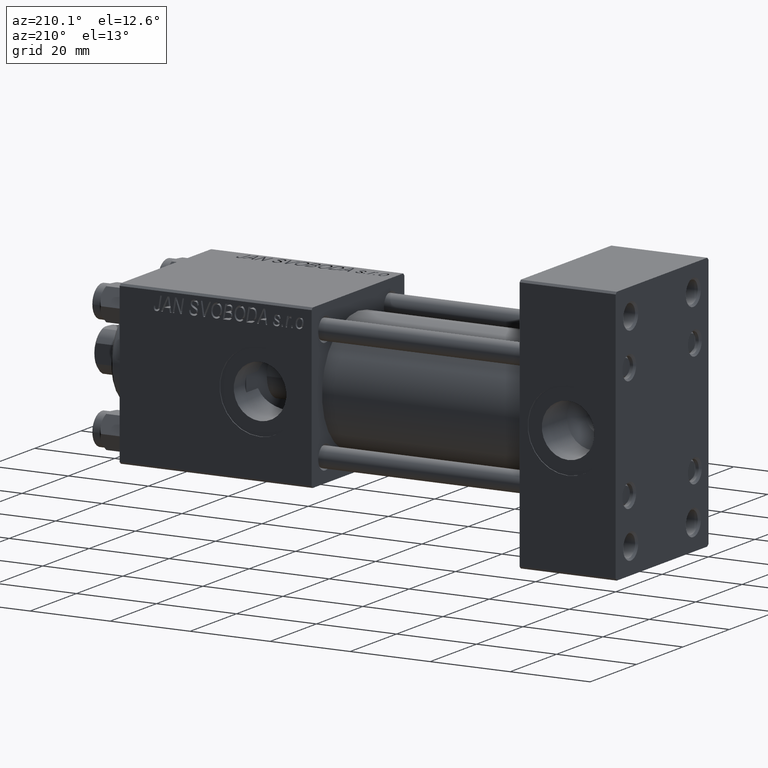
[diagram: clean part render]
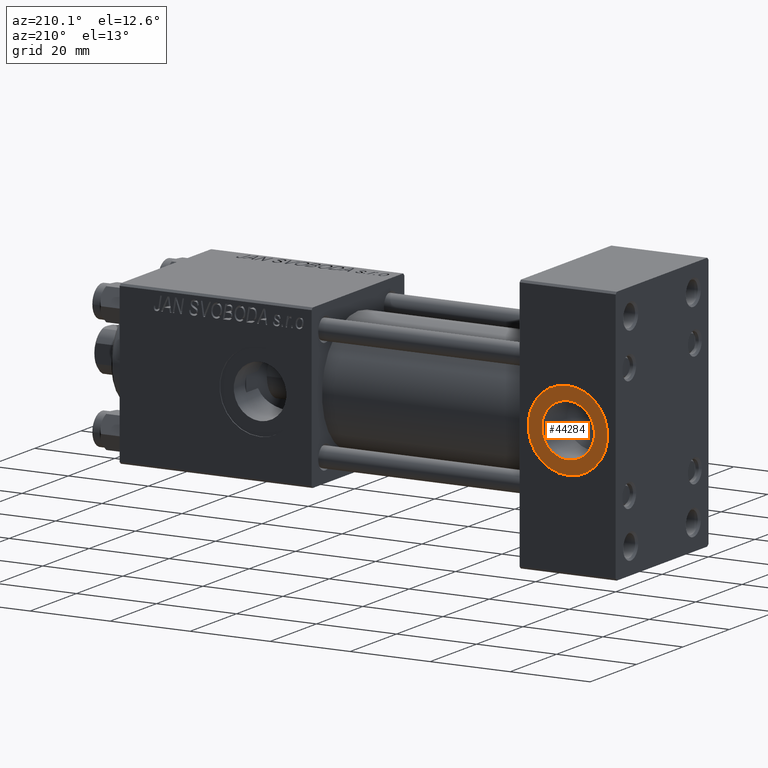
[diagram: same view with one face highlighted and labeled with its STEP entity id]
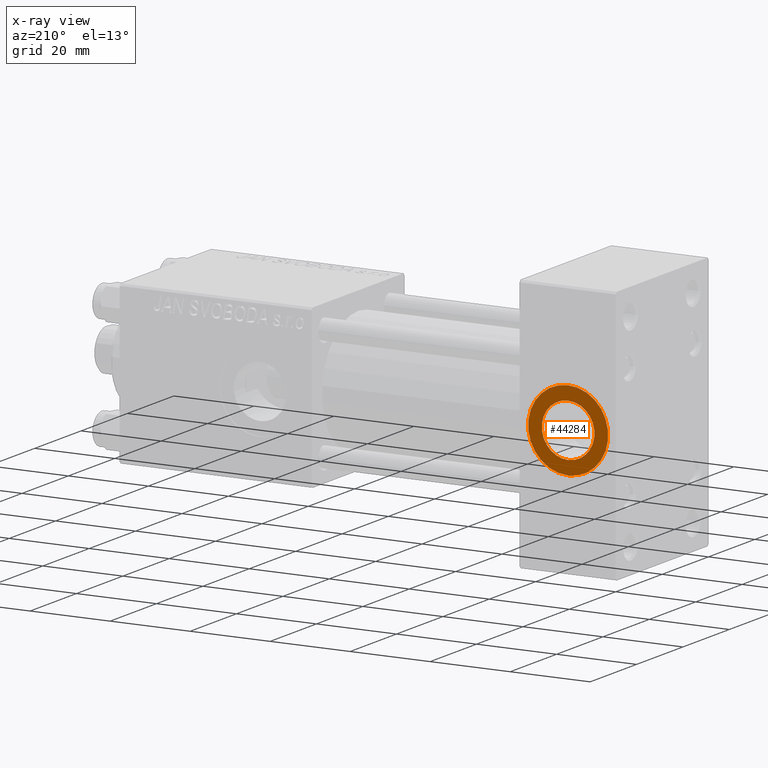
[diagram: x-ray of the same camera — body ghosted, the highlighted face saturated]
A machine part, auxiliary view. The second image highlights one B-rep face of the part: STEP entity #44284.
The next image is the same camera in x-ray: the body ghosted, the highlighted face saturated — about 0% of this face is hidden behind the body in this view.
In plain terms, the highlighted planar face has unit normal (0, 1, 0).
Its self-contained STEP definition (entity closure, byte-faithful):
#785 = AXIS2_PLACEMENT_3D ( 'NONE', #22925, #22418, #37836 ) ;
#985 = FACE_OUTER_BOUND ( 'NONE', #35199, .T. ) ;
#2363 = EDGE_LOOP ( 'NONE', ( #13763, #11213 ) ) ;
#3756 = VERTEX_POINT ( 'NONE', #6558 ) ;
#3809 = DIRECTION ( 'NONE',  ( 0.000000000000000000, 1.000000000000000000, 0.000000000000000000 ) ) ;
#6558 = CARTESIAN_POINT ( 'NONE',  ( 12.00000000000000000, 19.79999999999999716, -6.579999999999998295 ) ) ;
#7762 = DIRECTION ( 'NONE',  ( 0.000000000000000000, 1.000000000000000000, 0.000000000000000000 ) ) ;
#11213 = ORIENTED_EDGE ( 'NONE', *, *, #12389, .F. ) ;
#12389 = EDGE_CURVE ( 'NONE', #3756, #39683, #22550, .T. ) ;
#12856 = FACE_BOUND ( 'NONE', #2363, .T. ) ;
#13763 = ORIENTED_EDGE ( 'NONE', *, *, #40485, .F. ) ;
#17960 = VERTEX_POINT ( 'NONE', #35458 ) ;
#18800 = CIRCLE ( 'NONE', #22836, 10.00000000000000000 ) ;
#19342 = VERTEX_POINT ( 'NONE', #40837 ) ;
#19917 = CIRCLE ( 'NONE', #48963, 6.579999999999998295 ) ;
#22418 = DIRECTION ( 'NONE',  ( 0.000000000000000000, 1.000000000000000000, 0.000000000000000000 ) ) ;
#22550 = CIRCLE ( 'NONE', #785, 6.579999999999998295 ) ;
#22836 = AXIS2_PLACEMENT_3D ( 'NONE', #36309, #24921, #40343 ) ;
#22925 = CARTESIAN_POINT ( 'NONE',  ( 12.00000000000000000, 19.79999999999999716, 0.000000000000000000 ) ) ;
#23709 = DIRECTION ( 'NONE',  ( 0.000000000000000000, 1.000000000000000000, 0.000000000000000000 ) ) ;
#24561 = EDGE_CURVE ( 'NONE', #19342, #17960, #18800, .T. ) ;
#24921 = DIRECTION ( 'NONE',  ( 0.000000000000000000, 1.000000000000000000, 0.000000000000000000 ) ) ;
#26699 = CARTESIAN_POINT ( 'NONE',  ( 12.00000000000000000, 19.79999999999999716, 0.000000000000000000 ) ) ;
#28870 = ORIENTED_EDGE ( 'NONE', *, *, #24561, .T. ) ;
#30253 = DIRECTION ( 'NONE',  ( 0.000000000000000000, 0.000000000000000000, 1.000000000000000000 ) ) ;
#31123 = ORIENTED_EDGE ( 'NONE', *, *, #42660, .T. ) ;
#31800 = CARTESIAN_POINT ( 'NONE',  ( 12.00000000000000000, 19.79999999999999716, 0.000000000000000000 ) ) ;
#32121 = CIRCLE ( 'NONE', #37733, 10.00000000000000000 ) ;
#34593 = AXIS2_PLACEMENT_3D ( 'NONE', #31800, #23709, #39132 ) ;
#35199 = EDGE_LOOP ( 'NONE', ( #31123, #28870 ) ) ;
#35458 = CARTESIAN_POINT ( 'NONE',  ( 12.00000000000000000, 19.79999999999999716, 10.00000000000000000 ) ) ;
#36309 = CARTESIAN_POINT ( 'NONE',  ( 12.00000000000000000, 19.79999999999999716, 0.000000000000000000 ) ) ;
#37733 = AXIS2_PLACEMENT_3D ( 'NONE', #46473, #3809, #42940 ) ;
#37836 = DIRECTION ( 'NONE',  ( 0.000000000000000000, 0.000000000000000000, 1.000000000000000000 ) ) ;
#39132 = DIRECTION ( 'NONE',  ( 0.000000000000000000, -0.000000000000000000, 1.000000000000000000 ) ) ;
#39683 = VERTEX_POINT ( 'NONE', #41848 ) ;
#40343 = DIRECTION ( 'NONE',  ( 0.000000000000000000, 0.000000000000000000, 1.000000000000000000 ) ) ;
#40485 = EDGE_CURVE ( 'NONE', #39683, #3756, #19917, .T. ) ;
#40837 = CARTESIAN_POINT ( 'NONE',  ( 12.00000000000000178, 19.79999999999999716, -10.00000000000000000 ) ) ;
#41848 = CARTESIAN_POINT ( 'NONE',  ( 12.00000000000000000, 19.79999999999999716, 6.579999999999998295 ) ) ;
#42660 = EDGE_CURVE ( 'NONE', #17960, #19342, #32121, .T. ) ;
#42907 = PLANE ( 'NONE',  #34593 ) ;
#42940 = DIRECTION ( 'NONE',  ( 0.000000000000000000, 0.000000000000000000, 1.000000000000000000 ) ) ;
#44284 = ADVANCED_FACE ( 'NONE', ( #12856, #985 ), #42907, .T. ) ;
#46473 = CARTESIAN_POINT ( 'NONE',  ( 12.00000000000000000, 19.79999999999999716, 0.000000000000000000 ) ) ;
#48963 = AXIS2_PLACEMENT_3D ( 'NONE', #26699, #7762, #30253 ) ;